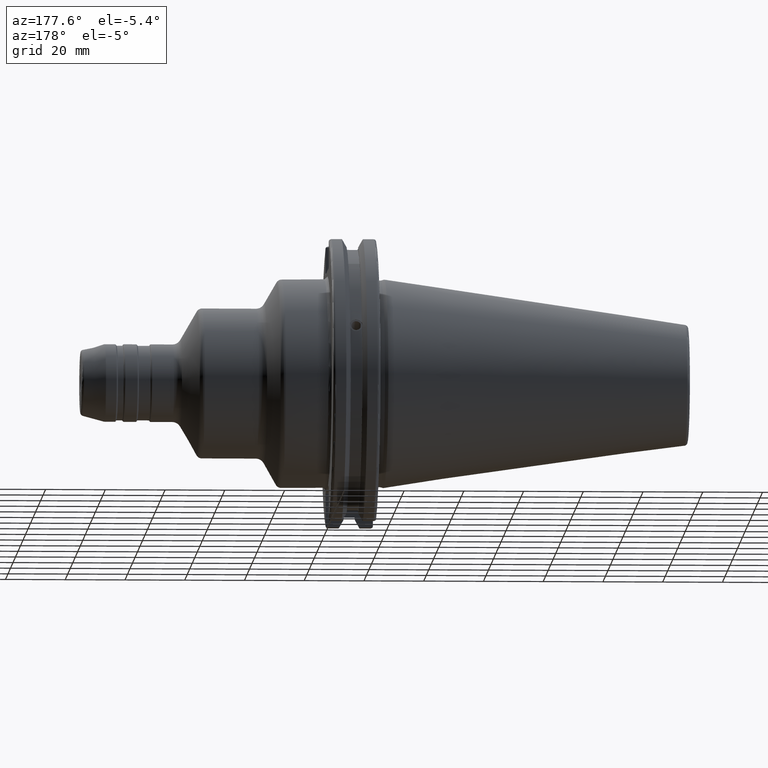
[diagram: clean part render]
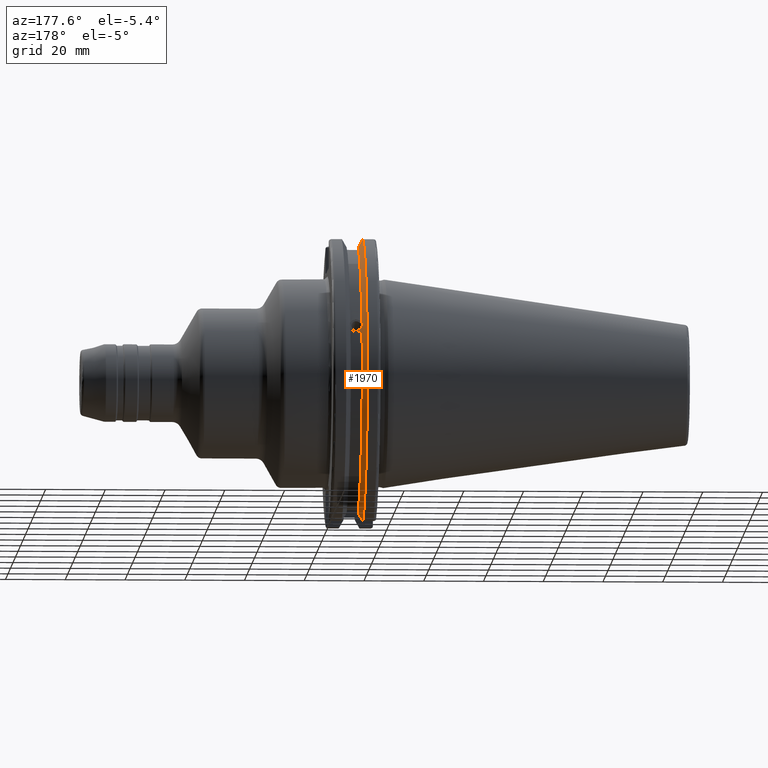
[diagram: same view with one face highlighted and labeled with its STEP entity id]
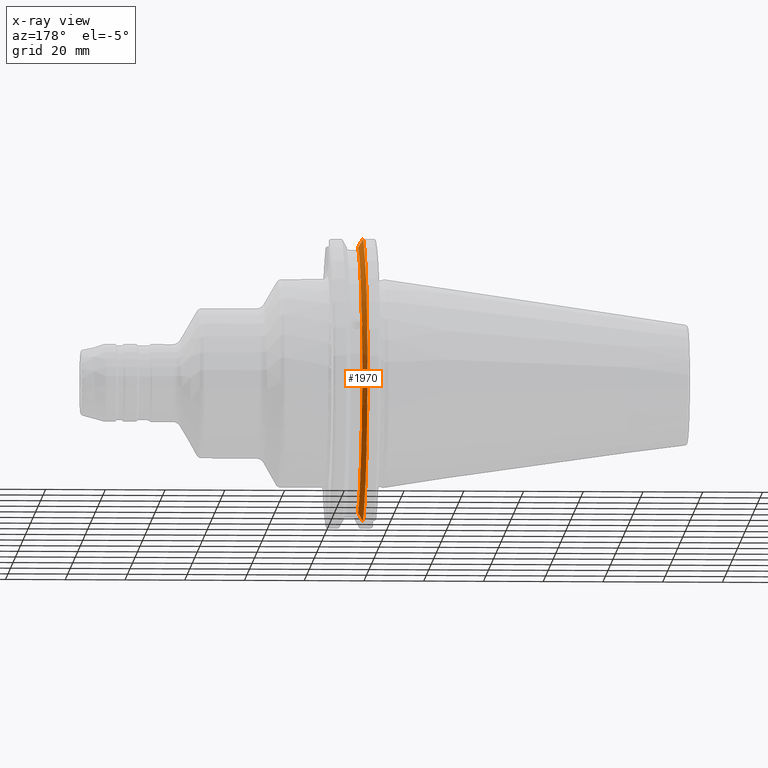
[diagram: x-ray of the same camera — body ghosted, the highlighted face saturated]
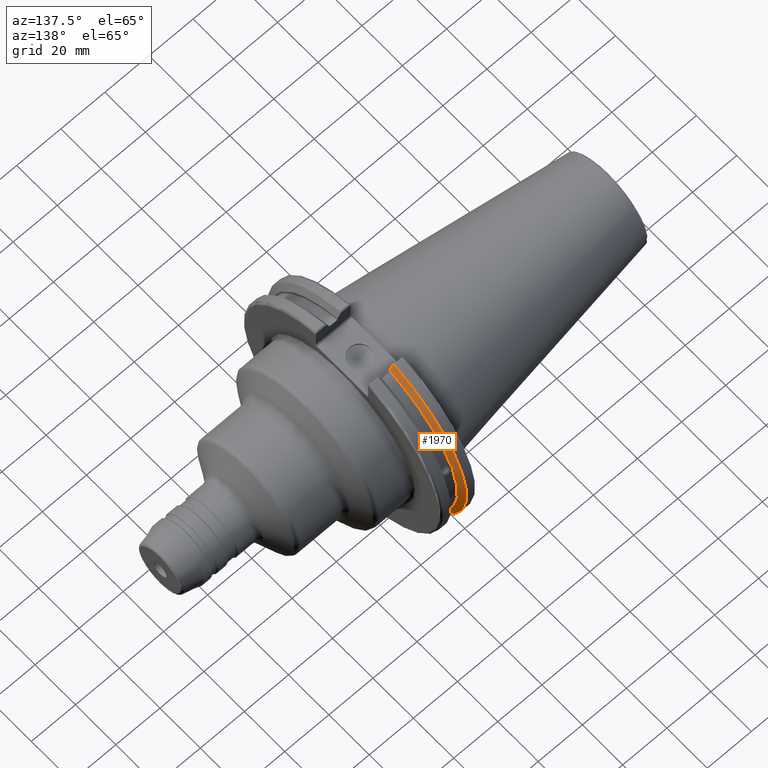
[diagram: same view with one face highlighted and labeled with its STEP entity id]
A machine part, auxiliary view. The second image highlights one B-rep face of the part: STEP entity #1970.
The next image is the same camera in x-ray: the body ghosted, the highlighted face saturated — about 0% of this face is hidden behind the body in this view.
A second angle (auxiliary view) of the same face is appended — the face is thin or edge-on in the first view.
In plain terms, the highlighted conical surface has half-angle 60 deg.
Its self-contained STEP definition (entity closure, byte-faithful):
#19=(
BOUNDED_CURVE()
B_SPLINE_CURVE(2,(#3626,#3627,#3628),.UNSPECIFIED.,.F.,.F.)
B_SPLINE_CURVE_WITH_KNOTS((3,3),(0.,0.275823910674652),.UNSPECIFIED.)
CURVE()
GEOMETRIC_REPRESENTATION_ITEM()
RATIONAL_B_SPLINE_CURVE((1.,1.00038235573731,1.00012873636533))
REPRESENTATION_ITEM('')
);
#20=(
BOUNDED_CURVE()
B_SPLINE_CURVE(2,(#3630,#3631,#3632),.UNSPECIFIED.,.F.,.F.)
B_SPLINE_CURVE_WITH_KNOTS((3,3),(0.,0.0648240472898323),.UNSPECIFIED.)
CURVE()
GEOMETRIC_REPRESENTATION_ITEM()
RATIONAL_B_SPLINE_CURVE((1.,1.00011477674853,1.00019140645976))
REPRESENTATION_ITEM('')
);
#21=(
BOUNDED_CURVE()
B_SPLINE_CURVE(2,(#3636,#3637,#3638),.UNSPECIFIED.,.F.,.F.)
B_SPLINE_CURVE_WITH_KNOTS((3,3),(0.325260944932483,0.390084992222205),
 .UNSPECIFIED.)
CURVE()
GEOMETRIC_REPRESENTATION_ITEM()
RATIONAL_B_SPLINE_CURVE((1.00019140645955,1.00011477674841,1.))
REPRESENTATION_ITEM('')
);
#22=(
BOUNDED_CURVE()
B_SPLINE_CURVE(2,(#3640,#3641,#3642),.UNSPECIFIED.,.F.,.F.)
B_SPLINE_CURVE_WITH_KNOTS((3,3),(0.0558332664491378,0.331657177124507),
 .UNSPECIFIED.)
CURVE()
GEOMETRIC_REPRESENTATION_ITEM()
RATIONAL_B_SPLINE_CURVE((1.00012873637135,1.00038235575519,1.))
REPRESENTATION_ITEM('')
);
#131=B_SPLINE_CURVE_WITH_KNOTS('',3,(#3580,#3581,#3582,#3583,#3584,#3585,
#3586,#3587,#3588,#3589,#3590,#3591,#3592,#3593),.UNSPECIFIED.,.F.,.F.,
(4,2,2,2,2,2,4),(0.426712868358718,0.441644498666905,0.480313313223129,
0.518982127779353,0.557650942335577,0.596319756891801,0.611251387199986),
 .UNSPECIFIED.);
#161=CONICAL_SURFACE('',#2203,47.8172386482472,1.0471975511966);
#225=FACE_OUTER_BOUND('',#347,.T.);
#347=EDGE_LOOP('',(#1575,#1576,#1577,#1578,#1579,#1580,#1581,#1582));
#724=CIRCLE('',#2204,46.4219772964944);
#725=CIRCLE('',#2205,49.2125);
#726=CIRCLE('',#2206,46.4219772964944);
#880=VERTEX_POINT('',#3577);
#881=VERTEX_POINT('',#3579);
#885=VERTEX_POINT('',#3623);
#886=VERTEX_POINT('',#3625);
#887=VERTEX_POINT('',#3629);
#888=VERTEX_POINT('',#3633);
#889=VERTEX_POINT('',#3635);
#890=VERTEX_POINT('',#3639);
#1131=EDGE_CURVE('',#881,#880,#131,.T.);
#1136=EDGE_CURVE('',#885,#880,#724,.T.);
#1137=EDGE_CURVE('',#885,#886,#19,.T.);
#1138=EDGE_CURVE('',#887,#886,#20,.T.);
#1139=EDGE_CURVE('',#887,#888,#725,.T.);
#1140=EDGE_CURVE('',#889,#888,#21,.T.);
#1141=EDGE_CURVE('',#889,#890,#22,.T.);
#1142=EDGE_CURVE('',#881,#890,#726,.T.);
#1575=ORIENTED_EDGE('',*,*,#1131,.T.);
#1576=ORIENTED_EDGE('',*,*,#1136,.F.);
#1577=ORIENTED_EDGE('',*,*,#1137,.T.);
#1578=ORIENTED_EDGE('',*,*,#1138,.F.);
#1579=ORIENTED_EDGE('',*,*,#1139,.T.);
#1580=ORIENTED_EDGE('',*,*,#1140,.F.);
#1581=ORIENTED_EDGE('',*,*,#1141,.T.);
#1582=ORIENTED_EDGE('',*,*,#1142,.F.);
#1970=ADVANCED_FACE('',(#225),#161,.T.);
#2203=AXIS2_PLACEMENT_3D('',#3622,#2652,#2653);
#2204=AXIS2_PLACEMENT_3D('',#3624,#2654,#2655);
#2205=AXIS2_PLACEMENT_3D('',#3634,#2656,#2657);
#2206=AXIS2_PLACEMENT_3D('',#3643,#2658,#2659);
#2652=DIRECTION('center_axis',(-1.,0.,0.));
#2653=DIRECTION('ref_axis',(0.,1.,0.));
#2654=DIRECTION('center_axis',(1.,0.,0.));
#2655=DIRECTION('ref_axis',(0.,0.,-1.));
#2656=DIRECTION('center_axis',(1.,0.,0.));
#2657=DIRECTION('ref_axis',(0.,0.,-1.));
#2658=DIRECTION('center_axis',(1.,0.,0.));
#2659=DIRECTION('ref_axis',(0.,0.,-1.));
#3577=CARTESIAN_POINT('',(9.2191,43.9096390749305,15.0646464421033));
#3579=CARTESIAN_POINT('',(9.2191,43.3201030900029,16.684383248648));
#3580=CARTESIAN_POINT('Ctrl Pts',(9.21910000000001,43.3201030900029,16.6843832486479));
#3581=CARTESIAN_POINT('Ctrl Pts',(9.20211843903392,43.3613106941341,16.6592273018006));
#3582=CARTESIAN_POINT('Ctrl Pts',(9.18608675403323,43.4012416983557,16.6326763251437));
#3583=CARTESIAN_POINT('Ctrl Pts',(9.13238673845037,43.539103734322,16.5325130832406));
#3584=CARTESIAN_POINT('Ctrl Pts',(9.09621610663555,43.6406982153491,16.441180795372));
#3585=CARTESIAN_POINT('Ctrl Pts',(9.04690868251975,43.8110833825827,16.2291323464527));
#3586=CARTESIAN_POINT('Ctrl Pts',(9.0341,43.8794096049168,16.10796730316));
#3587=CARTESIAN_POINT('Ctrl Pts',(9.0341,43.9675796948952,15.8657219718732));
#3588=CARTESIAN_POINT('Ctrl Pts',(9.04690868251975,43.9931221605126,15.7289849146254));
#3589=CARTESIAN_POINT('Ctrl Pts',(9.09621610663555,43.9989016655819,15.4570249042868));
#3590=CARTESIAN_POINT('Ctrl Pts',(9.13238673845037,43.9797830409458,15.3217566390708));
#3591=CARTESIAN_POINT('Ctrl Pts',(9.18608675403322,43.9385582852181,15.1564111356409));
#3592=CARTESIAN_POINT('Ctrl Pts',(9.20211843903391,43.9250360001461,15.1104047527575));
#3593=CARTESIAN_POINT('Ctrl Pts',(9.2191,43.9096390749305,15.0646464421033));
#3622=CARTESIAN_POINT('Origin',(8.41354548297563,0.,0.));
#3623=CARTESIAN_POINT('',(9.2191,12.95,-44.5791147973604));
#3624=CARTESIAN_POINT('Origin',(9.2191,0.,0.));
#3625=CARTESIAN_POINT('',(7.88638960562424,12.95,-46.9780755322918));
#3626=CARTESIAN_POINT('Ctrl Pts',(9.2191,12.95,-44.5791147973604));
#3627=CARTESIAN_POINT('Ctrl Pts',(8.57020449055827,12.95,-45.7494966802153));
#3628=CARTESIAN_POINT('Ctrl Pts',(7.88638960562424,12.95,-46.9780755322918));
#3629=CARTESIAN_POINT('',(7.60799096595127,13.4317035994433,-47.3440544806494));
#3630=CARTESIAN_POINT('Ctrl Pts',(7.60799096595127,13.4317035994433,-47.3440544806494));
#3631=CARTESIAN_POINT('Ctrl Pts',(7.74826896663818,13.1896660169966,-47.1601640966265));
#3632=CARTESIAN_POINT('Ctrl Pts',(7.88638960562424,12.95,-46.9780755322918));
#3633=CARTESIAN_POINT('',(7.60799096595127,13.4317035994433,47.3440544806494));
#3634=CARTESIAN_POINT('Origin',(7.60799096595127,0.,0.));
#3635=CARTESIAN_POINT('',(7.88638960562424,12.95,46.9780755322918));
#3636=CARTESIAN_POINT('Ctrl Pts',(7.88638960562424,12.95,46.9780755322917));
#3637=CARTESIAN_POINT('Ctrl Pts',(7.74826896663821,13.1896660169966,47.1601640966264));
#3638=CARTESIAN_POINT('Ctrl Pts',(7.60799096595127,13.4317035994433,47.3440544806494));
#3639=CARTESIAN_POINT('',(9.2191,12.95,44.5791147973604));
#3640=CARTESIAN_POINT('Ctrl Pts',(7.88638960562424,12.95,46.9780755322918));
#3641=CARTESIAN_POINT('Ctrl Pts',(8.57020449055492,12.95,45.7494966802213));
#3642=CARTESIAN_POINT('Ctrl Pts',(9.2191,12.95,44.5791147973604));
#3643=CARTESIAN_POINT('Origin',(9.2191,0.,0.));